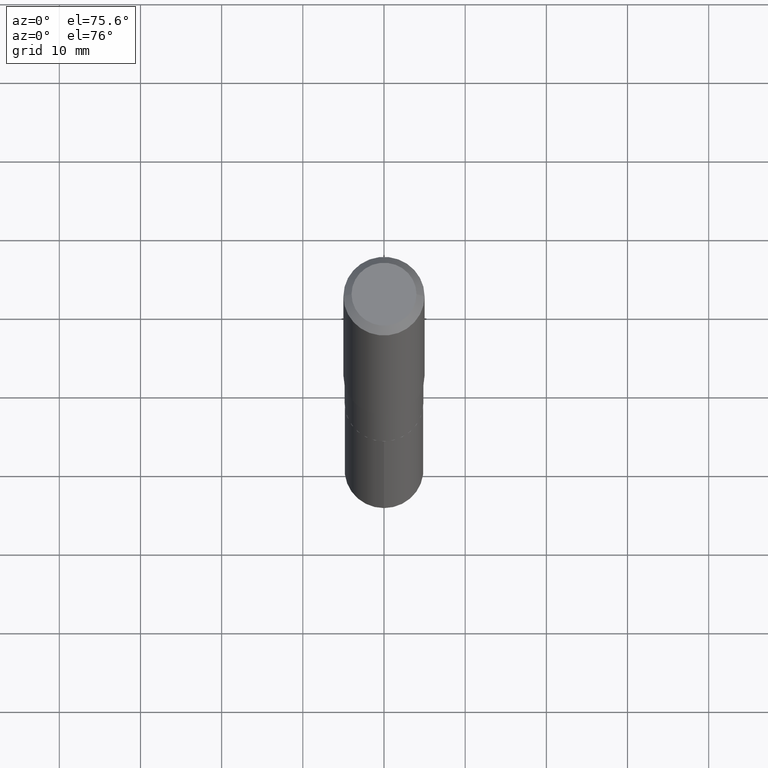
[diagram: clean part render]
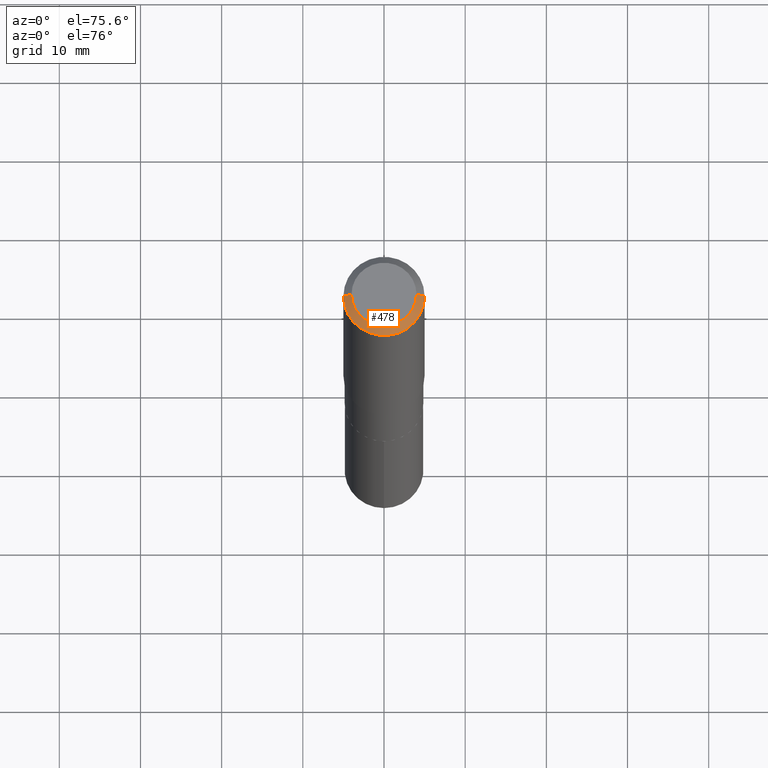
[diagram: same view with one face highlighted and labeled with its STEP entity id]
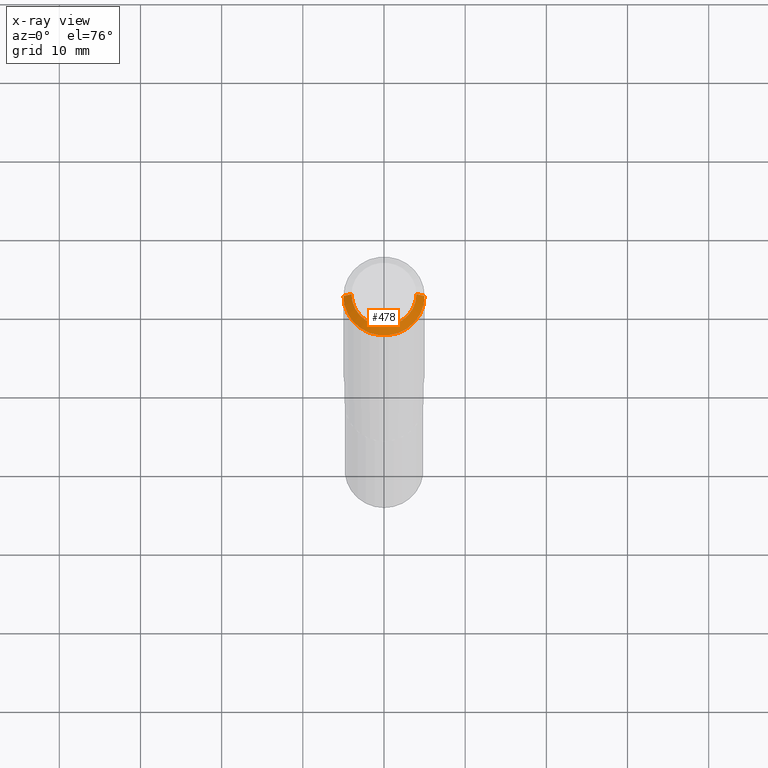
[diagram: x-ray of the same camera — body ghosted, the highlighted face saturated]
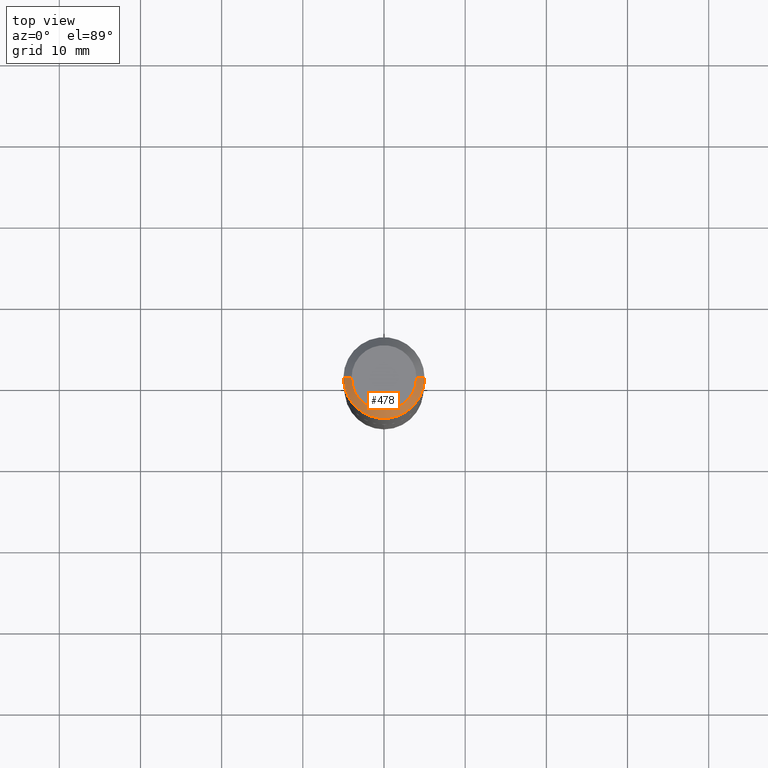
[diagram: same view with one face highlighted and labeled with its STEP entity id]
A machine part, auxiliary view. The second image highlights one B-rep face of the part: STEP entity #478.
The next image is the same camera in x-ray: the body ghosted, the highlighted face saturated — about 0% of this face is hidden behind the body in this view.
A second angle (top view) of the same face is appended — the face is thin or edge-on in the first view.
In plain terms, the highlighted conical surface has half-angle 45 deg.
Its self-contained STEP definition (entity closure, byte-faithful):
#8 = AXIS2_PLACEMENT_3D ( 'NONE', #108, #457, #22 ) ;
#22 = DIRECTION ( 'NONE',  ( 1.000000000000000000, -6.982962677686265922E-15, 0.000000000000000000 ) ) ;
#40 = DIRECTION ( 'NONE',  ( 1.000000000000000000, -6.982962677686265922E-15, 4.876223630392693006E-29 ) ) ;
#50 = VERTEX_POINT ( 'NONE', #365 ) ;
#54 = CARTESIAN_POINT ( 'NONE',  ( 0.1968500000000000250, -1.487948651171581601E-15, -0.03937000000000029365 ) ) ;
#58 = CARTESIAN_POINT ( 'NONE',  ( 0.1968500000000000250, -1.512055823412797189E-15, -0.03937000000000029365 ) ) ;
#63 = VERTEX_POINT ( 'NONE', #58 ) ;
#68 = LINE ( 'NONE', #340, #419 ) ;
#77 = DIRECTION ( 'NONE',  ( 0.7071067811865450192, -7.319954787623246579E-15, -0.7071067811865500152 ) ) ;
#88 = CIRCLE ( 'NONE', #216, 0.1574800000000000089 ) ;
#107 = CIRCLE ( 'NONE', #8, 0.1968500000000000250 ) ;
#108 = CARTESIAN_POINT ( 'NONE',  ( 9.627810689950954155E-31, -1.374596203102556547E-16, -0.03937000000000029365 ) ) ;
#129 = DIRECTION ( 'NONE',  ( 2.445468806185136597E-29, -3.491481338843145583E-15, -1.000000000000000000 ) ) ;
#139 = VERTEX_POINT ( 'NONE', #413 ) ;
#159 = VERTEX_POINT ( 'NONE', #185 ) ;
#185 = CARTESIAN_POINT ( 'NONE',  ( 0.1574800000000000089, -1.284169937930321189E-15, 3.855188123724205385E-18 ) ) ;
#198 = CONICAL_SURFACE ( 'NONE', #363, 0.1968500000000000250, 0.7853981633974447263 ) ;
#216 = AXIS2_PLACEMENT_3D ( 'NONE', #461, #270, #40 ) ;
#235 = ORIENTED_EDGE ( 'NONE', *, *, #442, .T. ) ;
#270 = DIRECTION ( 'NONE',  ( -2.445468806185136597E-29, 3.491481338843145583E-15, 1.000000000000000000 ) ) ;
#276 = ORIENTED_EDGE ( 'NONE', *, *, #392, .F. ) ;
#277 = DIRECTION ( 'NONE',  ( -1.000000000000000000, 6.982962677686265922E-15, 0.000000000000000000 ) ) ;
#291 = ORIENTED_EDGE ( 'NONE', *, *, #406, .T. ) ;
#305 = CARTESIAN_POINT ( 'NONE',  ( 9.627810689950954155E-31, -1.374596203102556547E-16, -0.03937000000000029365 ) ) ;
#326 = EDGE_CURVE ( 'NONE', #139, #159, #88, .T. ) ;
#335 = EDGE_LOOP ( 'NONE', ( #276, #449, #235, #291 ) ) ;
#340 = CARTESIAN_POINT ( 'NONE',  ( -0.1968500000000000250, 1.237136582792286225E-15, -0.03937000000000029365 ) ) ;
#363 = AXIS2_PLACEMENT_3D ( 'NONE', #305, #129, #277 ) ;
#365 = CARTESIAN_POINT ( 'NONE',  ( -0.1968500000000000250, -1.446277821392495794E-15, -0.03937000000000029365 ) ) ;
#379 = FACE_OUTER_BOUND ( 'NONE', #335, .T. ) ;
#392 = EDGE_CURVE ( 'NONE', #159, #63, #399, .T. ) ;
#399 = LINE ( 'NONE', #54, #481 ) ;
#406 = EDGE_CURVE ( 'NONE', #50, #63, #107, .T. ) ;
#413 = CARTESIAN_POINT ( 'NONE',  ( -0.1574800000000000089, 1.168406772637159618E-15, 3.855188123707939751E-18 ) ) ;
#414 = DIRECTION ( 'NONE',  ( -0.7071067811865450192, 2.468850131082230634E-15, -0.7071067811865500152 ) ) ;
#419 = VECTOR ( 'NONE', #414, 39.37007874015748143 ) ;
#442 = EDGE_CURVE ( 'NONE', #139, #50, #68, .T. ) ;
#449 = ORIENTED_EDGE ( 'NONE', *, *, #326, .F. ) ;
#457 = DIRECTION ( 'NONE',  ( -2.445468806185136597E-29, 3.491481338843145583E-15, 1.000000000000000000 ) ) ;
#461 = CARTESIAN_POINT ( 'NONE',  ( -9.427742298522567634E-47, 1.346031739168368355E-32, 3.855188123715870730E-18 ) ) ;
#478 = ADVANCED_FACE ( 'NONE', ( #379 ), #198, .T. ) ;
#481 = VECTOR ( 'NONE', #77, 39.37007874015748143 ) ;